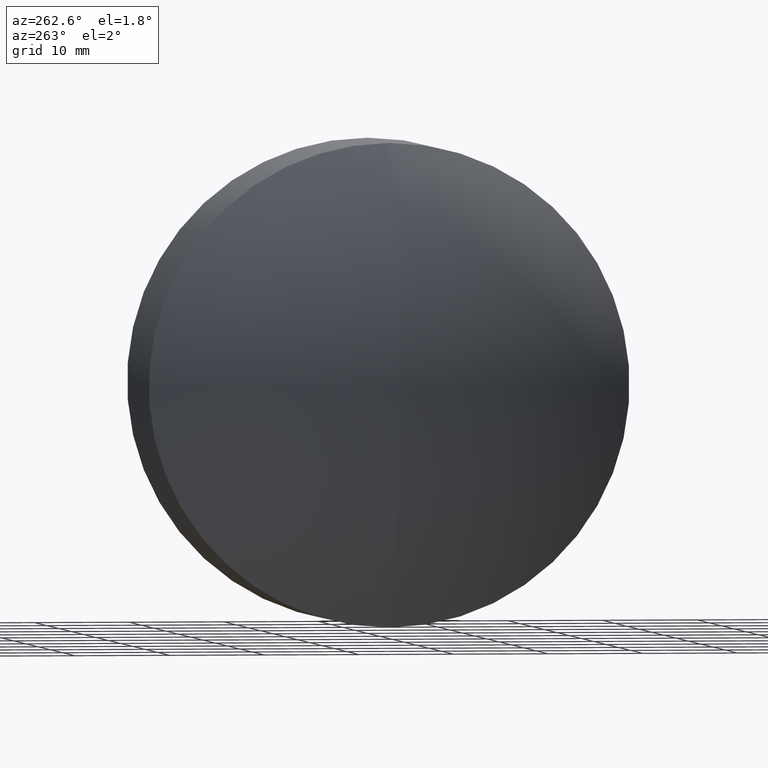
[diagram: clean part render]
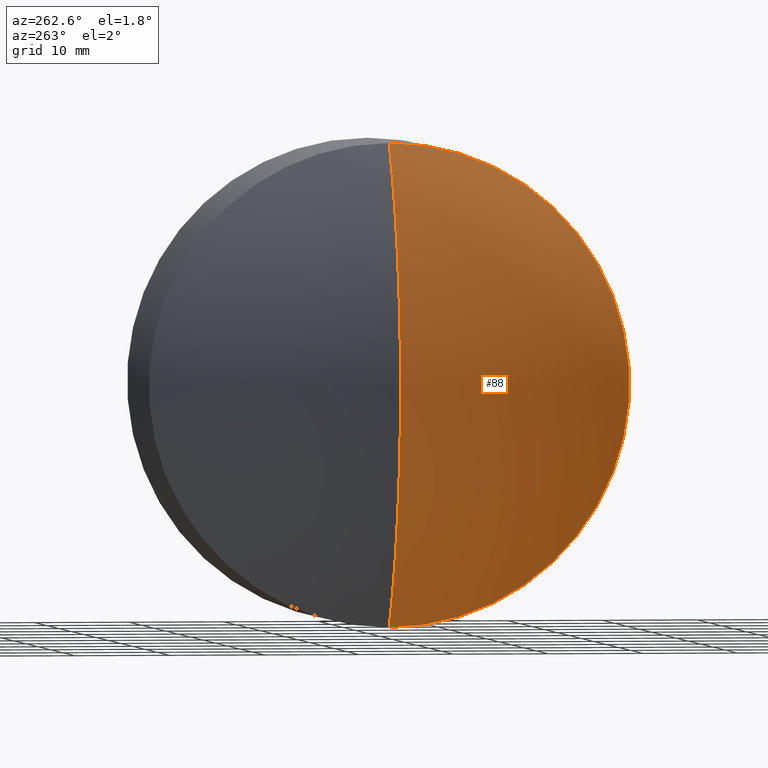
[diagram: same view with one face highlighted and labeled with its STEP entity id]
A machine part, auxiliary view. The second image highlights one B-rep face of the part: STEP entity #88.
In plain terms, the highlighted spherical surface has radius 39.48 mm.
Its self-contained STEP definition (entity closure, byte-faithful):
#2 = DIRECTION ( 'NONE',  ( -0.0000000000000000000, 1.000000000000000000, 1.224646799147353200E-016 ) ) ;
#6 = ORIENTED_EDGE ( 'NONE', *, *, #211, .F. ) ;
#10 = DIRECTION ( 'NONE',  ( 0.0000000000000000000, 0.0000000000000000000, -1.000000000000000000 ) ) ;
#40 = CARTESIAN_POINT ( 'NONE',  ( 93.24944378259087300, 0.0000000000000000000, -1.964037554729124800E-016 ) ) ;
#63 = CARTESIAN_POINT ( 'NONE',  ( 132.7294437825908900, 0.0000000000000000000, -2.613856536989788900E-015 ) ) ;
#67 = ORIENTED_EDGE ( 'NONE', *, *, #281, .T. ) ;
#70 = CARTESIAN_POINT ( 'NONE',  ( 102.5051092158878300, 0.0000000000000000000, 25.40000000000000600 ) ) ;
#88 = ADVANCED_FACE ( 'NONE', ( #343 ), #143, .T. ) ;
#95 = CIRCLE ( 'NONE', #284, 39.48000000000001800 ) ;
#117 = CARTESIAN_POINT ( 'NONE',  ( 132.7294437825908900, 0.0000000000000000000, -2.613856536989788900E-015 ) ) ;
#118 = AXIS2_PLACEMENT_3D ( 'NONE', #63, #252, #10 ) ;
#143 = SPHERICAL_SURFACE ( 'NONE', #330, 39.48000000000001800 ) ;
#150 = ORIENTED_EDGE ( 'NONE', *, *, #213, .T. ) ;
#161 = DIRECTION ( 'NONE',  ( 0.0000000000000000000, 0.0000000000000000000, 1.000000000000000000 ) ) ;
#167 = DIRECTION ( 'NONE',  ( 0.0000000000000000000, 1.000000000000000000, 0.0000000000000000000 ) ) ;
#176 = EDGE_LOOP ( 'NONE', ( #6, #67, #150 ) ) ;
#188 = CARTESIAN_POINT ( 'NONE',  ( 102.5051092158878300, 0.0000000000000000000, 0.0000000000000000000 ) ) ;
#193 = CARTESIAN_POINT ( 'NONE',  ( 132.7294437825908900, 0.0000000000000000000, -2.613856536989788900E-015 ) ) ;
#209 = AXIS2_PLACEMENT_3D ( 'NONE', #188, #333, #161 ) ;
#211 = EDGE_CURVE ( 'NONE', #342, #216, #95, .T. ) ;
#213 = EDGE_CURVE ( 'NONE', #292, #216, #241, .T. ) ;
#216 = VERTEX_POINT ( 'NONE', #40 ) ;
#241 = CIRCLE ( 'NONE', #118, 39.48000000000001800 ) ;
#252 = DIRECTION ( 'NONE',  ( 0.0000000000000000000, -1.000000000000000000, 0.0000000000000000000 ) ) ;
#274 = DIRECTION ( 'NONE',  ( 0.0000000000000000000, -1.224646799147353200E-016, 1.000000000000000000 ) ) ;
#281 = EDGE_CURVE ( 'NONE', #342, #292, #298, .T. ) ;
#284 = AXIS2_PLACEMENT_3D ( 'NONE', #117, #2, #274 ) ;
#287 = CARTESIAN_POINT ( 'NONE',  ( 102.5051092158878300, 3.110602869834277700E-015, -25.40000000000000900 ) ) ;
#292 = VERTEX_POINT ( 'NONE', #70 ) ;
#298 = CIRCLE ( 'NONE', #209, 25.40000000000000600 ) ;
#330 = AXIS2_PLACEMENT_3D ( 'NONE', #193, #167, #338 ) ;
#333 = DIRECTION ( 'NONE',  ( -1.000000000000000000, -0.0000000000000000000, -0.0000000000000000000 ) ) ;
#338 = DIRECTION ( 'NONE',  ( 0.0000000000000000000, 0.0000000000000000000, 1.000000000000000000 ) ) ;
#342 = VERTEX_POINT ( 'NONE', #287 ) ;
#343 = FACE_OUTER_BOUND ( 'NONE', #176, .T. ) ;